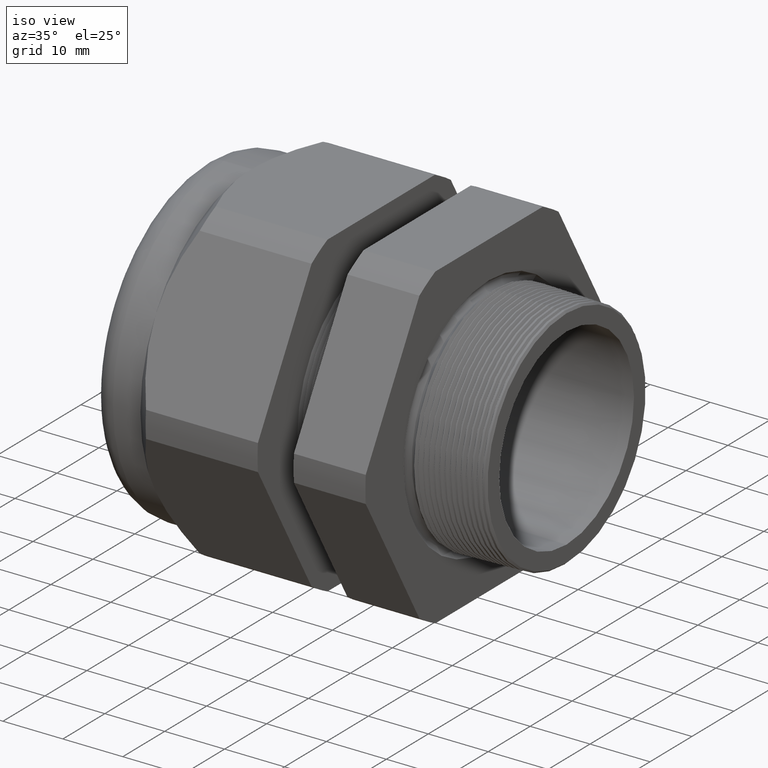
[diagram: clean part render]
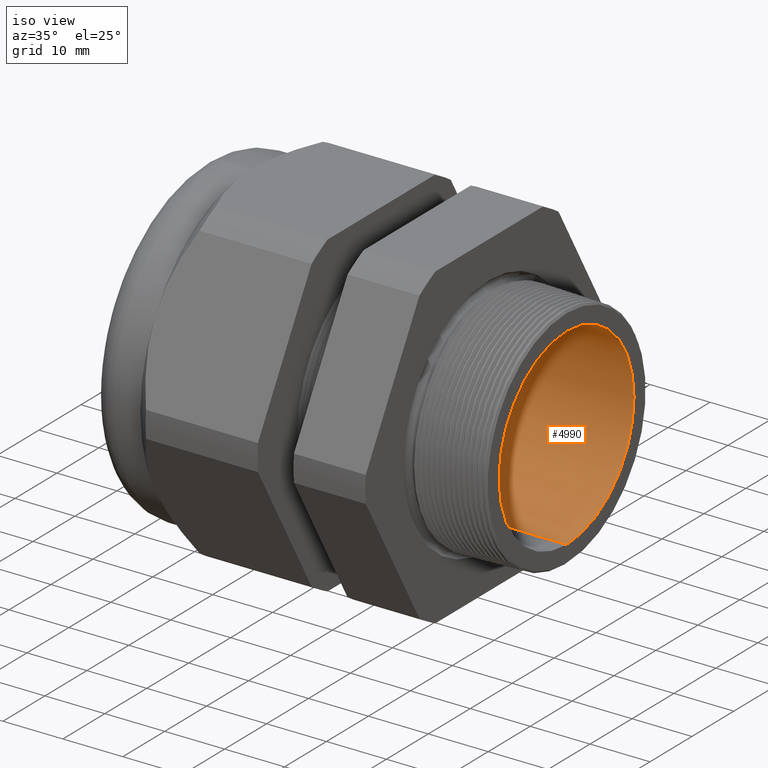
[diagram: same view with one face highlighted and labeled with its STEP entity id]
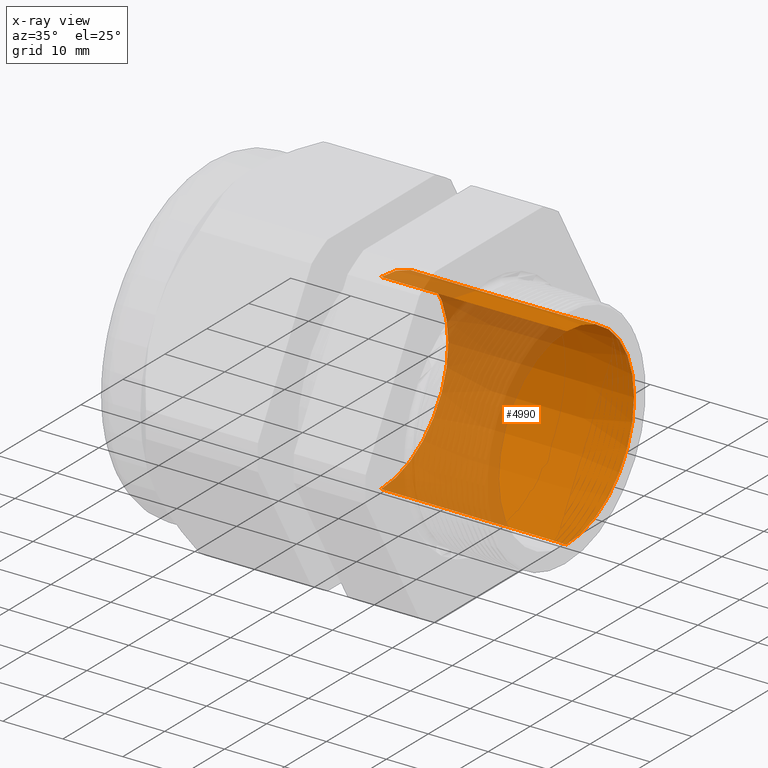
[diagram: x-ray of the same camera — body ghosted, the highlighted face saturated]
A machine part, iso view. The second image highlights one B-rep face of the part: STEP entity #4990.
The next image is the same camera in x-ray: the body ghosted, the highlighted face saturated — about 45% of this face is hidden behind the body in this view.
In plain terms, the highlighted conical surface has half-angle 0.145 deg.
Its self-contained STEP definition (entity closure, byte-faithful):
#1083 = VERTEX_POINT ( 'NONE', #1596 ) ;
#1361 = VERTEX_POINT ( 'NONE', #1649 ) ;
#1586 = VERTEX_POINT ( 'NONE', #1648 ) ;
#1596 = CARTESIAN_POINT ( 'NONE',  ( 0.2000000000000000400, 0.0000000000000000000, -0.6330845254709034400 ) ) ;
#1632 = CARTESIAN_POINT ( 'NONE',  ( -1.018802799999999800, 0.0000000000000000000, -0.6300000000000000000 ) ) ;
#1643 = DIRECTION ( 'NONE',  ( 0.9999967975839531000, 3.099305439608670900E-019, 0.002530774948145480100 ) ) ;
#1644 = VECTOR ( 'NONE', #1643, 39.37007874015748100 ) ;
#1645 = CARTESIAN_POINT ( 'NONE',  ( -1.018802799999999800, 7.715274834628325400E-017, 0.6300000000000000000 ) ) ;
#1646 = LINE ( 'NONE', #1645, #1644 ) ;
#1648 = CARTESIAN_POINT ( 'NONE',  ( -1.018802799999999800, 7.715274834628325400E-017, 0.6300000000000000000 ) ) ;
#1649 = CARTESIAN_POINT ( 'NONE',  ( 0.2000000000000000400, 7.753049377076629200E-017, 0.6330845254709034400 ) ) ;
#1782 = EDGE_CURVE ( 'NONE', #1586, #1361, #1646, .T. ) ;
#1879 = VERTEX_POINT ( 'NONE', #1632 ) ;
#2300 = DIRECTION ( 'NONE',  ( 0.9999967975839531000, 0.0000000000000000000, -0.002530774948145480100 ) ) ;
#2301 = VECTOR ( 'NONE', #2300, 39.37007874015748100 ) ;
#2302 = CARTESIAN_POINT ( 'NONE',  ( -1.018802799999999800, 0.0000000000000000000, -0.6300000000000000000 ) ) ;
#2303 = LINE ( 'NONE', #2302, #2301 ) ;
#2392 = DIRECTION ( 'NONE',  ( 0.0000000000000000000, 0.0000000000000000000, -1.000000000000000000 ) ) ;
#2393 = DIRECTION ( 'NONE',  ( 1.000000000000000000, 0.0000000000000000000, 0.0000000000000000000 ) ) ;
#2394 = AXIS2_PLACEMENT_3D ( 'NONE', #2400, #2393, #2392 ) ;
#2395 = CIRCLE ( 'NONE', #2394, 0.6330845254709034400 ) ;
#2400 = CARTESIAN_POINT ( 'NONE',  ( 0.2000000000000000400, 0.0000000000000000000, 0.0000000000000000000 ) ) ;
#3121 = DIRECTION ( 'NONE',  ( 0.0000000000000000000, 0.0000000000000000000, -1.000000000000000000 ) ) ;
#3122 = DIRECTION ( 'NONE',  ( 1.000000000000000000, 0.0000000000000000000, 0.0000000000000000000 ) ) ;
#3123 = CARTESIAN_POINT ( 'NONE',  ( -1.018802799999999800, 0.0000000000000000000, 0.0000000000000000000 ) ) ;
#3124 = AXIS2_PLACEMENT_3D ( 'NONE', #3123, #3122, #3121 ) ;
#3126 = CONICAL_SURFACE ( 'NONE', #3124, 0.6300000000000000000, 0.002530777649680375600 ) ;
#3127 = FACE_OUTER_BOUND ( 'NONE', #4991, .T. ) ;
#3128 = DIRECTION ( 'NONE',  ( 0.0000000000000000000, 0.0000000000000000000, -1.000000000000000000 ) ) ;
#3129 = DIRECTION ( 'NONE',  ( 1.000000000000000000, 0.0000000000000000000, 0.0000000000000000000 ) ) ;
#3130 = CARTESIAN_POINT ( 'NONE',  ( -1.018802799999999800, 0.0000000000000000000, 0.0000000000000000000 ) ) ;
#3131 = AXIS2_PLACEMENT_3D ( 'NONE', #3130, #3129, #3128 ) ;
#3132 = CIRCLE ( 'NONE', #3131, 0.6300000000000000000 ) ;
#4502 = ORIENTED_EDGE ( 'NONE', *, *, #4578, .T. ) ;
#4504 = ORIENTED_EDGE ( 'NONE', *, *, #4552, .T. ) ;
#4552 = EDGE_CURVE ( 'NONE', #1879, #1083, #2303, .T. ) ;
#4578 = EDGE_CURVE ( 'NONE', #1083, #1361, #2395, .T. ) ;
#4988 = ORIENTED_EDGE ( 'NONE', *, *, #1782, .F. ) ;
#4989 = EDGE_CURVE ( 'NONE', #1879, #1586, #3132, .T. ) ;
#4990 = ADVANCED_FACE ( 'NONE', ( #3127 ), #3126, .F. ) ;
#4991 = EDGE_LOOP ( 'NONE', ( #4988, #4993, #4504, #4502 ) ) ;
#4993 = ORIENTED_EDGE ( 'NONE', *, *, #4989, .F. ) ;